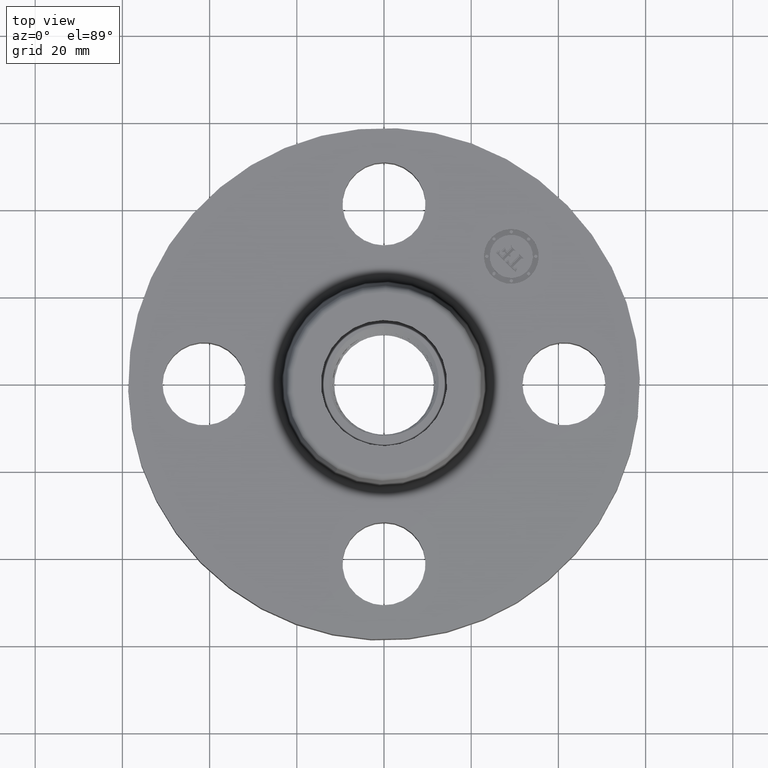
[diagram: clean part render]
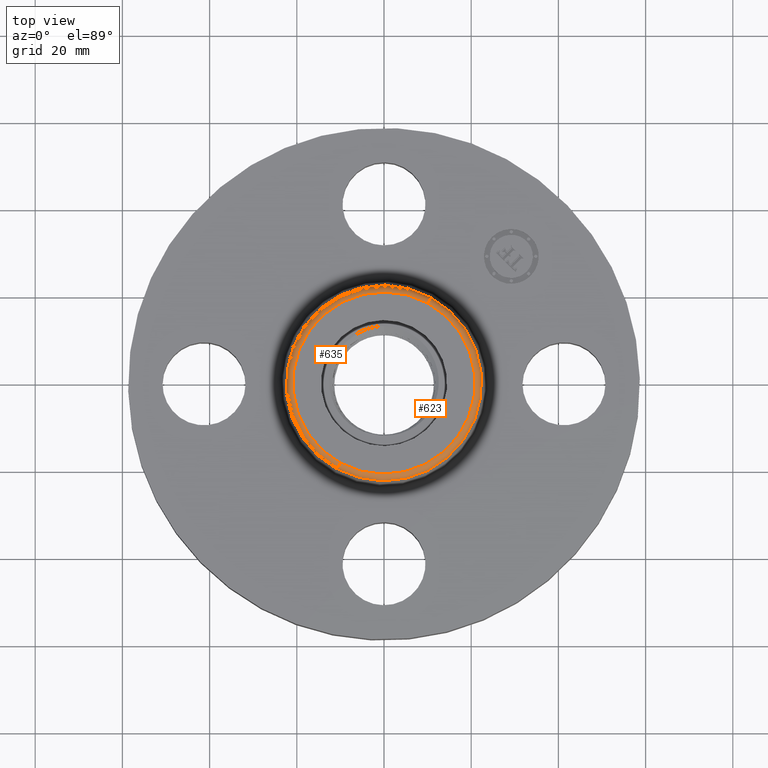
[diagram: same view with one multi-face feature highlighted, each face labeled with its STEP entity id]
A machine part, top view. The highlighted faces form ONE feature: a constant-radius fillet chain: 2 tangent blend faces with common blend radius 1.524 mm. The faces share edges in the B-rep.
Their STEP definitions:
[1] entity #635 (Torus):
#583=AXIS2_PLACEMENT_3D('Circle Axis2P3D',#581,#582,$) ;
#596=AXIS2_PLACEMENT_3D('Torus Axis2P3D',#593,#594,#595) ;
#600=AXIS2_PLACEMENT_3D('Circle Axis2P3D',#598,#599,$) ;
#614=AXIS2_PLACEMENT_3D('Circle Axis2P3D',#612,#613,$) ;
#626=AXIS2_PLACEMENT_3D('Circle Axis2P3D',#624,#625,$) ;
#559=CARTESIAN_POINT('Vertex',(0.422727828052,0.773798098876,0.950418890664)) ;
#566=CARTESIAN_POINT('Vertex',(-0.422727828052,-0.773798098876,0.950418890664)) ;
#581=CARTESIAN_POINT('Axis2P3D Location',(0.,0.,0.950418890664)) ;
#593=CARTESIAN_POINT('Axis2P3D Location',(0.,0.,0.940000000004)) ;
#598=CARTESIAN_POINT('Axis2P3D Location',(0.394399308808,0.721943092224,0.940000000004)) ;
#602=CARTESIAN_POINT('Vertex',(0.394399308808,0.721943092224,1.)) ;
#609=CARTESIAN_POINT('Vertex',(-0.394399308808,-0.721943092224,1.)) ;
#612=CARTESIAN_POINT('Axis2P3D Location',(-0.394399308808,-0.721943092224,0.940000000004)) ;
#624=CARTESIAN_POINT('Axis2P3D Location',(0.,0.,1.)) ;
#582=DIRECTION('Axis2P3D Direction',(0.,0.,-0.0393700787402)) ;
#594=DIRECTION('Axis2P3D Direction',(0.,0.,-0.0393700787402)) ;
#595=DIRECTION('Axis2P3D XDirection',(-0.0188750212049,-0.0345504945626,0.)) ;
#599=DIRECTION('Axis2P3D Direction',(-0.0345504945626,0.0188750212049,0.)) ;
#613=DIRECTION('Axis2P3D Direction',(0.0345504945626,-0.0188750212049,0.)) ;
#625=DIRECTION('Axis2P3D Direction',(0.,0.,-0.0393700787402)) ;
#630=ORIENTED_EDGE('',*,*,#585,.F.) ;
#631=ORIENTED_EDGE('',*,*,#616,.T.) ;
#632=ORIENTED_EDGE('',*,*,#628,.T.) ;
#633=ORIENTED_EDGE('',*,*,#604,.F.) ;
#635=ADVANCED_FACE('PartBody',(#634),#597,.T.) ;
#584=CIRCLE('generated circle',#583,0.881738234644) ;
#601=CIRCLE('generated circle',#600,0.0600000000002) ;
#615=CIRCLE('generated circle',#614,0.0600000000002) ;
#627=CIRCLE('generated circle',#626,0.822649769463) ;
#597=TOROIDAL_SURFACE('homeo Torus',#596,0.822649769463,0.0600000000002) ;
#585=EDGE_CURVE('',#567,#560,#584,.T.) ;
#604=EDGE_CURVE('',#560,#603,#601,.F.) ;
#616=EDGE_CURVE('',#567,#610,#615,.F.) ;
#628=EDGE_CURVE('',#610,#603,#627,.T.) ;
#629=EDGE_LOOP('',(#630,#631,#632,#633)) ;
#634=FACE_OUTER_BOUND('',#629,.T.) ;
#560=VERTEX_POINT('',#559) ;
#567=VERTEX_POINT('',#566) ;
#603=VERTEX_POINT('',#602) ;
#610=VERTEX_POINT('',#609) ;
[2] entity #623 (Torus):
#564=AXIS2_PLACEMENT_3D('Circle Axis2P3D',#562,#563,$) ;
#596=AXIS2_PLACEMENT_3D('Torus Axis2P3D',#593,#594,#595) ;
#600=AXIS2_PLACEMENT_3D('Circle Axis2P3D',#598,#599,$) ;
#607=AXIS2_PLACEMENT_3D('Circle Axis2P3D',#605,#606,$) ;
#614=AXIS2_PLACEMENT_3D('Circle Axis2P3D',#612,#613,$) ;
#559=CARTESIAN_POINT('Vertex',(0.422727828052,0.773798098876,0.950418890664)) ;
#562=CARTESIAN_POINT('Axis2P3D Location',(0.,0.,0.950418890664)) ;
#566=CARTESIAN_POINT('Vertex',(-0.422727828052,-0.773798098876,0.950418890664)) ;
#593=CARTESIAN_POINT('Axis2P3D Location',(0.,0.,0.940000000004)) ;
#598=CARTESIAN_POINT('Axis2P3D Location',(0.394399308808,0.721943092224,0.940000000004)) ;
#602=CARTESIAN_POINT('Vertex',(0.394399308808,0.721943092224,1.)) ;
#605=CARTESIAN_POINT('Axis2P3D Location',(0.,0.,1.)) ;
#609=CARTESIAN_POINT('Vertex',(-0.394399308808,-0.721943092224,1.)) ;
#612=CARTESIAN_POINT('Axis2P3D Location',(-0.394399308808,-0.721943092224,0.940000000004)) ;
#563=DIRECTION('Axis2P3D Direction',(0.,0.,-0.0393700787402)) ;
#594=DIRECTION('Axis2P3D Direction',(0.,0.,-0.0393700787402)) ;
#595=DIRECTION('Axis2P3D XDirection',(-0.0188750212049,-0.0345504945626,0.)) ;
#599=DIRECTION('Axis2P3D Direction',(-0.0345504945626,0.0188750212049,0.)) ;
#606=DIRECTION('Axis2P3D Direction',(0.,0.,-0.0393700787402)) ;
#613=DIRECTION('Axis2P3D Direction',(0.0345504945626,-0.0188750212049,0.)) ;
#618=ORIENTED_EDGE('',*,*,#568,.F.) ;
#619=ORIENTED_EDGE('',*,*,#604,.T.) ;
#620=ORIENTED_EDGE('',*,*,#611,.T.) ;
#621=ORIENTED_EDGE('',*,*,#616,.F.) ;
#623=ADVANCED_FACE('PartBody',(#622),#597,.T.) ;
#565=CIRCLE('generated circle',#564,0.881738234644) ;
#601=CIRCLE('generated circle',#600,0.0600000000002) ;
#608=CIRCLE('generated circle',#607,0.822649769463) ;
#615=CIRCLE('generated circle',#614,0.0600000000002) ;
#597=TOROIDAL_SURFACE('homeo Torus',#596,0.822649769463,0.0600000000002) ;
#568=EDGE_CURVE('',#560,#567,#565,.T.) ;
#604=EDGE_CURVE('',#560,#603,#601,.F.) ;
#611=EDGE_CURVE('',#603,#610,#608,.T.) ;
#616=EDGE_CURVE('',#567,#610,#615,.F.) ;
#617=EDGE_LOOP('',(#618,#619,#620,#621)) ;
#622=FACE_OUTER_BOUND('',#617,.T.) ;
#560=VERTEX_POINT('',#559) ;
#567=VERTEX_POINT('',#566) ;
#603=VERTEX_POINT('',#602) ;
#610=VERTEX_POINT('',#609) ;